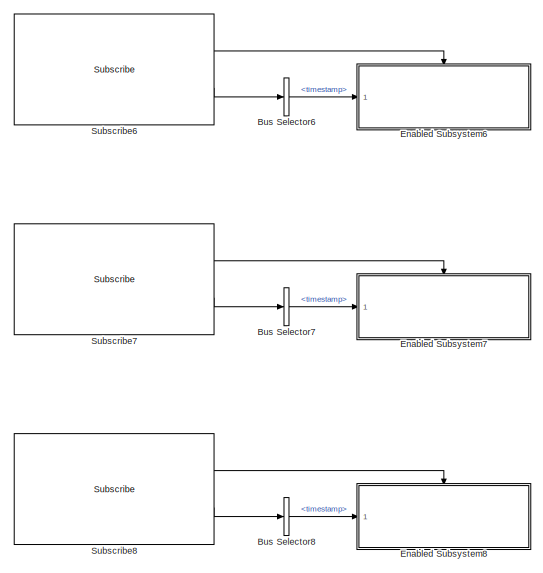
[diagram: root canvas - part 1/2, right side, full height]
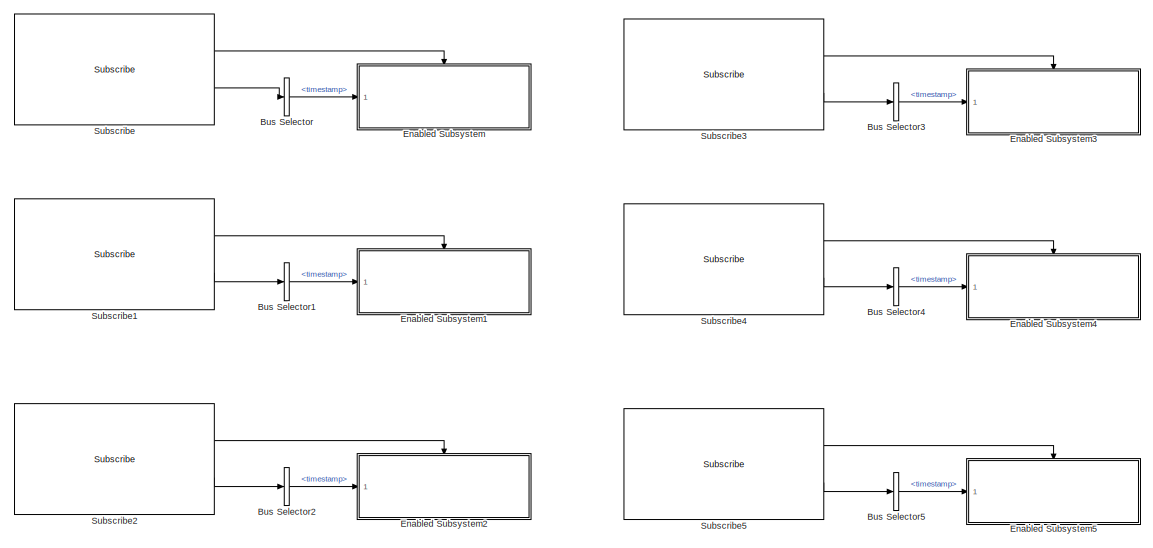
[diagram: root canvas - part 2/2, left side, full height]
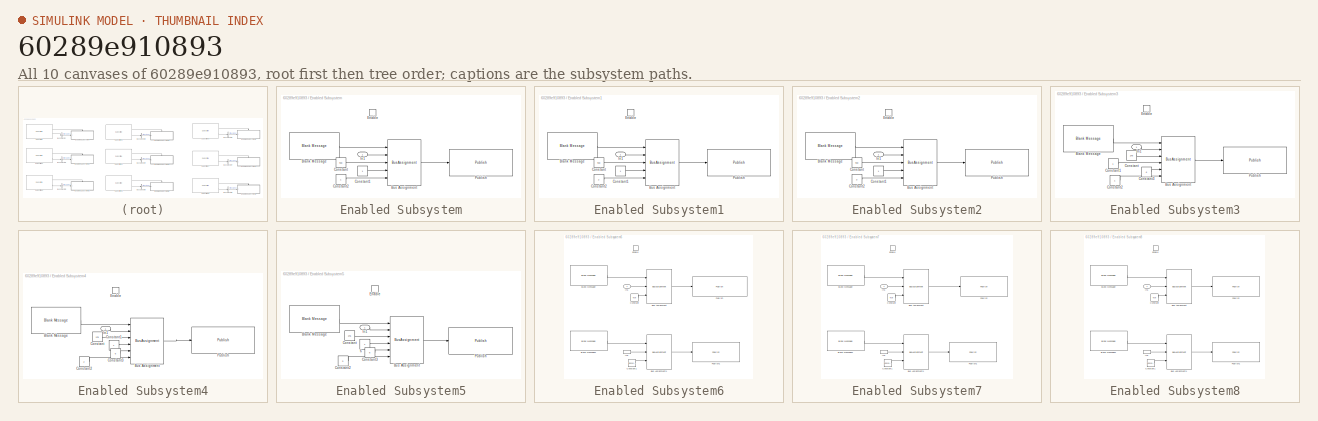
[diagram: thumbnail index - all 10 canvases of the model, root first then tree order]
MODEL slx_60289e910893
KIND model
CONFIG AbsTol = auto
CONFIG EnableMultiTasking = off
CONFIG FixedStep = 0.0001
CONFIG MaxStep = auto
CONFIG MinStep = auto
CONFIG RelTol = 1e-3
CONFIG SampleTimeConstraint = Unconstrained
CONFIG SolverName = FixedStepAuto
CONFIG StartTime = 0.0
CONFIG StopTime = inf
BLOCK [BusSelector] Bus Selector
  OutputSignals = timestamp
  Ports = [1, 1]
BLOCK [BusSelector] Bus Selector1
  OutputSignals = timestamp
  Ports = [1, 1]
BLOCK [BusSelector] Bus Selector2
  OutputSignals = timestamp
  Ports = [1, 1]
BLOCK [BusSelector] Bus Selector3
  OutputSignals = timestamp
  Ports = [1, 1]
BLOCK [BusSelector] Bus Selector4
  OutputSignals = timestamp
  Ports = [1, 1]
BLOCK [BusSelector] Bus Selector5
  OutputSignals = timestamp
  Ports = [1, 1]
BLOCK [BusSelector] Bus Selector6
  OutputSignals = timestamp
  Ports = [1, 1]
BLOCK [BusSelector] Bus Selector7
  OutputSignals = timestamp
  Ports = [1, 1]
BLOCK [BusSelector] Bus Selector8
  OutputSignals = timestamp
  Ports = [1, 1]
BLOCK [SubSystem] Enabled Subsystem
  Ports = [1, 0, 1]
  RequestExecContextInheritance = off
  TreatAsAtomicUnit = on
BLOCK [Reference] Enabled Subsystem/Blank Message  REF=ros2lib/Blank Message  (lib defined in slx_3c1549211f48)
  Ports = [0, 1]
  SourceBlock = ros2lib/Blank Message
  SourceProductBaseCode = RR
  SourceType = ROS2 Blank Message
BLOCK [BusAssignment] Enabled Subsystem/Bus Assignment
  AssignedSignals = timestamp,command,param1,target_system
  Ports = [5, 1]
BLOCK [Constant] Enabled Subsystem/Constant
  OutDataTypeStr = uint32
  Value = 400
BLOCK [Constant] Enabled Subsystem/Constant1
  OutDataTypeStr = single
BLOCK [Constant] Enabled Subsystem/Constant2
  OutDataTypeStr = uint8
BLOCK [EnablePort] Enabled Subsystem/Enable
  Ports = []
BLOCK [Inport] Enabled Subsystem/In1
BLOCK [Reference] Enabled Subsystem/Publish  REF=ros2lib/Publish  (lib defined in slx_3c1549211f48)
  Ports = [1]
  SourceBlock = ros2lib/Publish
  SourceProductBaseCode = RR
  SourceType = ROS2 Publish
BLOCK [SubSystem] Enabled Subsystem1
  Ports = [1, 0, 1]
  RequestExecContextInheritance = off
  TreatAsAtomicUnit = on
BLOCK [Reference] Enabled Subsystem1/Blank Message  REF=ros2lib/Blank Message  (lib defined in slx_3c1549211f48)
  Ports = [0, 1]
  SourceBlock = ros2lib/Blank Message
  SourceProductBaseCode = RR
  SourceType = ROS2 Blank Message
BLOCK [BusAssignment] Enabled Subsystem1/Bus Assignment
  AssignedSignals = timestamp,command,param1,target_system
  Ports = [5, 1]
BLOCK [Constant] Enabled Subsystem1/Constant
  OutDataTypeStr = uint32
  Value = 400
BLOCK [Constant] Enabled Subsystem1/Constant1
  OutDataTypeStr = single
BLOCK [Constant] Enabled Subsystem1/Constant2
  OutDataTypeStr = uint8
  Value = 2
BLOCK [EnablePort] Enabled Subsystem1/Enable
  Ports = []
BLOCK [Inport] Enabled Subsystem1/In1
BLOCK [Reference] Enabled Subsystem1/Publish  REF=ros2lib/Publish  (lib defined in slx_3c1549211f48)
  Ports = [1]
  SourceBlock = ros2lib/Publish
  SourceProductBaseCode = RR
  SourceType = ROS2 Publish
BLOCK [SubSystem] Enabled Subsystem2
  Ports = [1, 0, 1]
  RequestExecContextInheritance = off
  TreatAsAtomicUnit = on
BLOCK [Reference] Enabled Subsystem2/Blank Message  REF=ros2lib/Blank Message  (lib defined in slx_3c1549211f48)
  Ports = [0, 1]
  SourceBlock = ros2lib/Blank Message
  SourceProductBaseCode = RR
  SourceType = ROS2 Blank Message
BLOCK [BusAssignment] Enabled Subsystem2/Bus Assignment
  AssignedSignals = timestamp,command,param1,target_system
  Ports = [5, 1]
BLOCK [Constant] Enabled Subsystem2/Constant
  OutDataTypeStr = uint32
  Value = 400
BLOCK [Constant] Enabled Subsystem2/Constant1
  OutDataTypeStr = single
BLOCK [Constant] Enabled Subsystem2/Constant2
  OutDataTypeStr = uint8
  Value = 3
BLOCK [EnablePort] Enabled Subsystem2/Enable
  Ports = []
BLOCK [Inport] Enabled Subsystem2/In1
BLOCK [Reference] Enabled Subsystem2/Publish  REF=ros2lib/Publish  (lib defined in slx_3c1549211f48)
  Ports = [1]
  SourceBlock = ros2lib/Publish
  SourceProductBaseCode = RR
  SourceType = ROS2 Publish
BLOCK [SubSystem] Enabled Subsystem3
  Ports = [1, 0, 1]
  RequestExecContextInheritance = off
  TreatAsAtomicUnit = on
BLOCK [Reference] Enabled Subsystem3/Blank Message  REF=ros2lib/Blank Message  (lib defined in slx_3c1549211f48)
  Ports = [0, 1]
  SourceBlock = ros2lib/Blank Message
  SourceProductBaseCode = RR
  SourceType = ROS2 Blank Message
BLOCK [BusAssignment] Enabled Subsystem3/Bus Assignment
  AssignedSignals = timestamp,command,param1,param2,target_system
  Ports = [6, 1]
BLOCK [Constant] Enabled Subsystem3/Constant
  OutDataTypeStr = uint32
  Value = 176
BLOCK [Constant] Enabled Subsystem3/Constant1
  OutDataTypeStr = single
BLOCK [Constant] Enabled Subsystem3/Constant2
  OutDataTypeStr = uint8
BLOCK [Constant] Enabled Subsystem3/Constant3
  OutDataTypeStr = single
  Value = 6
BLOCK [EnablePort] Enabled Subsystem3/Enable
  Ports = []
BLOCK [Inport] Enabled Subsystem3/In1
BLOCK [Reference] Enabled Subsystem3/Publish  REF=ros2lib/Publish  (lib defined in slx_3c1549211f48)
  Ports = [1]
  SourceBlock = ros2lib/Publish
  SourceProductBaseCode = RR
  SourceType = ROS2 Publish
BLOCK [SubSystem] Enabled Subsystem4
  Ports = [1, 0, 1]
  RequestExecContextInheritance = off
  TreatAsAtomicUnit = on
BLOCK [Reference] Enabled Subsystem4/Blank Message  REF=ros2lib/Blank Message  (lib defined in slx_3c1549211f48)
  Ports = [0, 1]
  SourceBlock = ros2lib/Blank Message
  SourceProductBaseCode = RR
  SourceType = ROS2 Blank Message
BLOCK [BusAssignment] Enabled Subsystem4/Bus Assignment
  AssignedSignals = timestamp,command,param1,param2,target_system
  Ports = [6, 1]
BLOCK [Constant] Enabled Subsystem4/Constant
  OutDataTypeStr = uint32
  Value = 176
BLOCK [Constant] Enabled Subsystem4/Constant1
  OutDataTypeStr = single
BLOCK [Constant] Enabled Subsystem4/Constant2
  OutDataTypeStr = uint8
  Value = 2
BLOCK [Constant] Enabled Subsystem4/Constant3
  OutDataTypeStr = single
  Value = 6
BLOCK [EnablePort] Enabled Subsystem4/Enable
  Ports = []
BLOCK [Inport] Enabled Subsystem4/In1
BLOCK [Reference] Enabled Subsystem4/Publish  REF=ros2lib/Publish  (lib defined in slx_3c1549211f48)
  Ports = [1]
  SourceBlock = ros2lib/Publish
  SourceProductBaseCode = RR
  SourceType = ROS2 Publish
BLOCK [SubSystem] Enabled Subsystem5
  Ports = [1, 0, 1]
  RequestExecContextInheritance = off
  TreatAsAtomicUnit = on
BLOCK [Constant] Enabled Subsystem5/6
  OutDataTypeStr = single
BLOCK [Reference] Enabled Subsystem5/Blank Message  REF=ros2lib/Blank Message  (lib defined in slx_3c1549211f48)
  Ports = [0, 1]
  SourceBlock = ros2lib/Blank Message
  SourceProductBaseCode = RR
  SourceType = ROS2 Blank Message
BLOCK [BusAssignment] Enabled Subsystem5/Bus Assignment
  AssignedSignals = timestamp,command,param1,param2,target_system
  Ports = [6, 1]
BLOCK [Constant] Enabled Subsystem5/Constant
  OutDataTypeStr = uint32
  Value = 176
BLOCK [Constant] Enabled Subsystem5/Constant2
  OutDataTypeStr = uint8
  Value = 3
BLOCK [Constant] Enabled Subsystem5/Constant3
  OutDataTypeStr = single
  Value = 6
BLOCK [EnablePort] Enabled Subsystem5/Enable
  Ports = []
BLOCK [Inport] Enabled Subsystem5/In1
BLOCK [Reference] Enabled Subsystem5/Publish  REF=ros2lib/Publish  (lib defined in slx_3c1549211f48)
  Ports = [1]
  SourceBlock = ros2lib/Publish
  SourceProductBaseCode = RR
  SourceType = ROS2 Publish
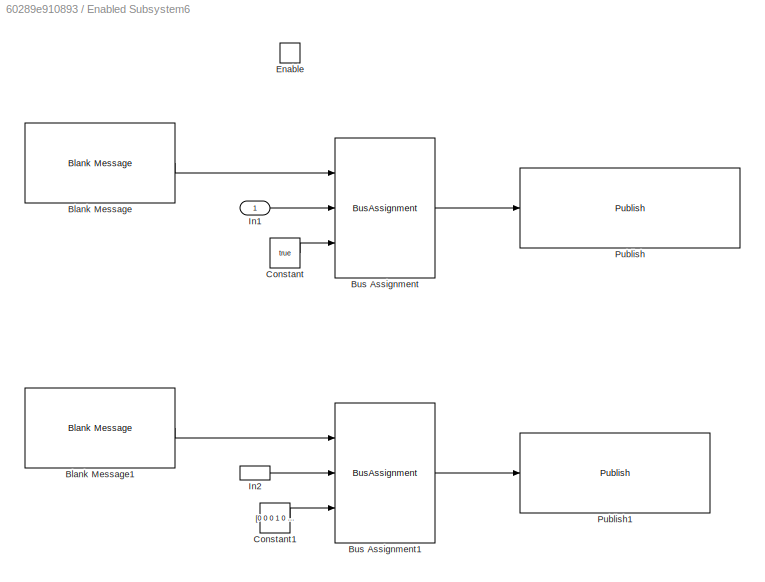
BLOCK [SubSystem] Enabled Subsystem6
  Ports = [1, 0, 1]
  RequestExecContextInheritance = off
  TreatAsAtomicUnit = on
BLOCK [Reference] Enabled Subsystem6/Blank Message  REF=ros2lib/Blank Message  (lib defined in slx_3c1549211f48)
  Ports = [0, 1]
  SourceBlock = ros2lib/Blank Message
  SourceProductBaseCode = RR
  SourceType = ROS2 Blank Message
BLOCK [Reference] Enabled Subsystem6/Blank Message1  REF=ros2lib/Blank Message  (lib defined in slx_3c1549211f48)
  Ports = [0, 1]
  SourceBlock = ros2lib/Blank Message
  SourceProductBaseCode = RR
  SourceType = ROS2 Blank Message
BLOCK [BusAssignment] Enabled Subsystem6/Bus Assignment
  AssignedSignals = timestamp,actuator
  Ports = [3, 1]
BLOCK [BusAssignment] Enabled Subsystem6/Bus Assignment1
  AssignedSignals = timestamp,control
  Ports = [3, 1]
BLOCK [Constant] Enabled Subsystem6/Constant
  OutDataTypeStr = boolean
  Value = true
BLOCK [Constant] Enabled Subsystem6/Constant1
  OutDataTypeStr = single
  Value = [0 0 0 1 0 0 0 0]'
BLOCK [EnablePort] Enabled Subsystem6/Enable
  Ports = []
BLOCK [Inport] Enabled Subsystem6/In1
BLOCK [InportShadow] Enabled Subsystem6/In2
BLOCK [Reference] Enabled Subsystem6/Publish  REF=ros2lib/Publish  (lib defined in slx_3c1549211f48)
  Ports = [1]
  SourceBlock = ros2lib/Publish
  SourceProductBaseCode = RR
  SourceType = ROS2 Publish
BLOCK [Reference] Enabled Subsystem6/Publish1  REF=ros2lib/Publish  (lib defined in slx_3c1549211f48)
  Ports = [1]
  SourceBlock = ros2lib/Publish
  SourceProductBaseCode = RR
  SourceType = ROS2 Publish
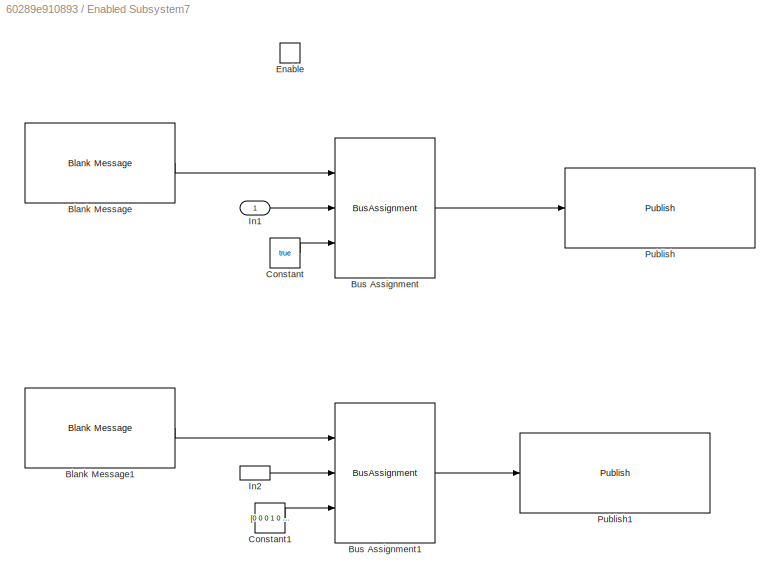
BLOCK [SubSystem] Enabled Subsystem7
  Ports = [1, 0, 1]
  RequestExecContextInheritance = off
  TreatAsAtomicUnit = on
BLOCK [Reference] Enabled Subsystem7/Blank Message  REF=ros2lib/Blank Message  (lib defined in slx_3c1549211f48)
  Ports = [0, 1]
  SourceBlock = ros2lib/Blank Message
  SourceProductBaseCode = RR
  SourceType = ROS2 Blank Message
BLOCK [Reference] Enabled Subsystem7/Blank Message1  REF=ros2lib/Blank Message  (lib defined in slx_3c1549211f48)
  Ports = [0, 1]
  SourceBlock = ros2lib/Blank Message
  SourceProductBaseCode = RR
  SourceType = ROS2 Blank Message
BLOCK [BusAssignment] Enabled Subsystem7/Bus Assignment
  AssignedSignals = timestamp,actuator
  Ports = [3, 1]
BLOCK [BusAssignment] Enabled Subsystem7/Bus Assignment1
  AssignedSignals = timestamp,control
  Ports = [3, 1]
BLOCK [Constant] Enabled Subsystem7/Constant
  OutDataTypeStr = boolean
  Value = true
BLOCK [Constant] Enabled Subsystem7/Constant1
  OutDataTypeStr = single
  Value = [0 0 0 1 0 0 0 0]'
BLOCK [EnablePort] Enabled Subsystem7/Enable
  Ports = []
BLOCK [Inport] Enabled Subsystem7/In1
BLOCK [InportShadow] Enabled Subsystem7/In2
BLOCK [Reference] Enabled Subsystem7/Publish  REF=ros2lib/Publish  (lib defined in slx_3c1549211f48)
  Ports = [1]
  SourceBlock = ros2lib/Publish
  SourceProductBaseCode = RR
  SourceType = ROS2 Publish
BLOCK [Reference] Enabled Subsystem7/Publish1  REF=ros2lib/Publish  (lib defined in slx_3c1549211f48)
  Ports = [1]
  SourceBlock = ros2lib/Publish
  SourceProductBaseCode = RR
  SourceType = ROS2 Publish
BLOCK [SubSystem] Enabled Subsystem8
  Ports = [1, 0, 1]
  RequestExecContextInheritance = off
  TreatAsAtomicUnit = on
BLOCK [Reference] Enabled Subsystem8/Blank Message  REF=ros2lib/Blank Message  (lib defined in slx_3c1549211f48)
  Ports = [0, 1]
  SourceBlock = ros2lib/Blank Message
  SourceProductBaseCode = RR
  SourceType = ROS2 Blank Message
BLOCK [Reference] Enabled Subsystem8/Blank Message1  REF=ros2lib/Blank Message  (lib defined in slx_3c1549211f48)
  Ports = [0, 1]
  SourceBlock = ros2lib/Blank Message
  SourceProductBaseCode = RR
  SourceType = ROS2 Blank Message
BLOCK [BusAssignment] Enabled Subsystem8/Bus Assignment
  AssignedSignals = timestamp,actuator
  Ports = [3, 1]
BLOCK [BusAssignment] Enabled Subsystem8/Bus Assignment1
  AssignedSignals = timestamp,control
  Ports = [3, 1]
BLOCK [Constant] Enabled Subsystem8/Constant
  OutDataTypeStr = boolean
  Value = true
BLOCK [Constant] Enabled Subsystem8/Constant1
  OutDataTypeStr = single
  Value = [0 0 0 1 0 0 0 0]'
BLOCK [EnablePort] Enabled Subsystem8/Enable
  Ports = []
BLOCK [Inport] Enabled Subsystem8/In1
BLOCK [InportShadow] Enabled Subsystem8/In2
BLOCK [Reference] Enabled Subsystem8/Publish  REF=ros2lib/Publish  (lib defined in slx_3c1549211f48)
  Ports = [1]
  SourceBlock = ros2lib/Publish
  SourceProductBaseCode = RR
  SourceType = ROS2 Publish
BLOCK [Reference] Enabled Subsystem8/Publish1  REF=ros2lib/Publish  (lib defined in slx_3c1549211f48)
  Ports = [1]
  SourceBlock = ros2lib/Publish
  SourceProductBaseCode = RR
  SourceType = ROS2 Publish
BLOCK [Reference] Subscribe  REF=ros2lib/Subscribe  (lib defined in slx_3c1549211f48)
  Ports = [0, 2]
  SourceBlock = ros2lib/Subscribe
  SourceProductBaseCode = RR
  SourceType = ROS2 Subscribe
BLOCK [Reference] Subscribe1  REF=ros2lib/Subscribe  (lib defined in slx_3c1549211f48)
  Ports = [0, 2]
  SourceBlock = ros2lib/Subscribe
  SourceProductBaseCode = RR
  SourceType = ROS2 Subscribe
BLOCK [Reference] Subscribe2  REF=ros2lib/Subscribe  (lib defined in slx_3c1549211f48)
  Ports = [0, 2]
  SourceBlock = ros2lib/Subscribe
  SourceProductBaseCode = RR
  SourceType = ROS2 Subscribe
BLOCK [Reference] Subscribe3  REF=ros2lib/Subscribe  (lib defined in slx_3c1549211f48)
  Ports = [0, 2]
  SourceBlock = ros2lib/Subscribe
  SourceProductBaseCode = RR
  SourceType = ROS2 Subscribe
BLOCK [Reference] Subscribe4  REF=ros2lib/Subscribe  (lib defined in slx_3c1549211f48)
  Ports = [0, 2]
  SourceBlock = ros2lib/Subscribe
  SourceProductBaseCode = RR
  SourceType = ROS2 Subscribe
BLOCK [Reference] Subscribe5  REF=ros2lib/Subscribe  (lib defined in slx_3c1549211f48)
  Ports = [0, 2]
  SourceBlock = ros2lib/Subscribe
  SourceProductBaseCode = RR
  SourceType = ROS2 Subscribe
BLOCK [Reference] Subscribe6  REF=ros2lib/Subscribe  (lib defined in slx_3c1549211f48)
  Ports = [0, 2]
  SourceBlock = ros2lib/Subscribe
  SourceProductBaseCode = RR
  SourceType = ROS2 Subscribe
BLOCK [Reference] Subscribe7  REF=ros2lib/Subscribe  (lib defined in slx_3c1549211f48)
  Ports = [0, 2]
  SourceBlock = ros2lib/Subscribe
  SourceProductBaseCode = RR
  SourceType = ROS2 Subscribe
BLOCK [Reference] Subscribe8  REF=ros2lib/Subscribe  (lib defined in slx_3c1549211f48)
  Ports = [0, 2]
  SourceBlock = ros2lib/Subscribe
  SourceProductBaseCode = RR
  SourceType = ROS2 Subscribe
LINE Bus Selector1:1 -> Enabled Subsystem1:1
LINE Bus Selector2:1 -> Enabled Subsystem2:1
LINE Bus Selector3:1 -> Enabled Subsystem3:1
LINE Bus Selector4:1 -> Enabled Subsystem4:1
LINE Bus Selector5:1 -> Enabled Subsystem5:1
LINE Bus Selector6:1 -> Enabled Subsystem6:1
LINE Bus Selector7:1 -> Enabled Subsystem7:1
LINE Bus Selector8:1 -> Enabled Subsystem8:1
LINE Bus Selector:1 -> Enabled Subsystem:1
LINE Enabled Subsystem/Blank Message:1 -> Enabled Subsystem/Bus Assignment:1
LINE Enabled Subsystem/Bus Assignment:1 -> Enabled Subsystem/Publish:1
LINE Enabled Subsystem/Constant1:1 -> Enabled Subsystem/Bus Assignment:4
LINE Enabled Subsystem/Constant2:1 -> Enabled Subsystem/Bus Assignment:5
LINE Enabled Subsystem/Constant:1 -> Enabled Subsystem/Bus Assignment:3
LINE Enabled Subsystem/In1:1 -> Enabled Subsystem/Bus Assignment:2
LINE Enabled Subsystem1/Blank Message:1 -> Enabled Subsystem1/Bus Assignment:1
LINE Enabled Subsystem1/Bus Assignment:1 -> Enabled Subsystem1/Publish:1
LINE Enabled Subsystem1/Constant1:1 -> Enabled Subsystem1/Bus Assignment:4
LINE Enabled Subsystem1/Constant2:1 -> Enabled Subsystem1/Bus Assignment:5
LINE Enabled Subsystem1/Constant:1 -> Enabled Subsystem1/Bus Assignment:3
LINE Enabled Subsystem1/In1:1 -> Enabled Subsystem1/Bus Assignment:2
LINE Enabled Subsystem2/Blank Message:1 -> Enabled Subsystem2/Bus Assignment:1
LINE Enabled Subsystem2/Bus Assignment:1 -> Enabled Subsystem2/Publish:1
LINE Enabled Subsystem2/Constant1:1 -> Enabled Subsystem2/Bus Assignment:4
LINE Enabled Subsystem2/Constant2:1 -> Enabled Subsystem2/Bus Assignment:5
LINE Enabled Subsystem2/Constant:1 -> Enabled Subsystem2/Bus Assignment:3
LINE Enabled Subsystem2/In1:1 -> Enabled Subsystem2/Bus Assignment:2
LINE Enabled Subsystem3/Blank Message:1 -> Enabled Subsystem3/Bus Assignment:1
LINE Enabled Subsystem3/Bus Assignment:1 -> Enabled Subsystem3/Publish:1
LINE Enabled Subsystem3/Constant1:1 -> Enabled Subsystem3/Bus Assignment:4
LINE Enabled Subsystem3/Constant2:1 -> Enabled Subsystem3/Bus Assignment:6
LINE Enabled Subsystem3/Constant3:1 -> Enabled Subsystem3/Bus Assignment:5
LINE Enabled Subsystem3/Constant:1 -> Enabled Subsystem3/Bus Assignment:3
LINE Enabled Subsystem3/In1:1 -> Enabled Subsystem3/Bus Assignment:2
LINE Enabled Subsystem4/Blank Message:1 -> Enabled Subsystem4/Bus Assignment:1
LINE Enabled Subsystem4/Bus Assignment:1 -> Enabled Subsystem4/Publish:1
LINE Enabled Subsystem4/Constant1:1 -> Enabled Subsystem4/Bus Assignment:4
LINE Enabled Subsystem4/Constant2:1 -> Enabled Subsystem4/Bus Assignment:6
LINE Enabled Subsystem4/Constant3:1 -> Enabled Subsystem4/Bus Assignment:5
LINE Enabled Subsystem4/Constant:1 -> Enabled Subsystem4/Bus Assignment:3
LINE Enabled Subsystem4/In1:1 -> Enabled Subsystem4/Bus Assignment:2
LINE Enabled Subsystem5/6:1 -> Enabled Subsystem5/Bus Assignment:4
LINE Enabled Subsystem5/Blank Message:1 -> Enabled Subsystem5/Bus Assignment:1
LINE Enabled Subsystem5/Bus Assignment:1 -> Enabled Subsystem5/Publish:1
LINE Enabled Subsystem5/Constant2:1 -> Enabled Subsystem5/Bus Assignment:6
LINE Enabled Subsystem5/Constant3:1 -> Enabled Subsystem5/Bus Assignment:5
LINE Enabled Subsystem5/Constant:1 -> Enabled Subsystem5/Bus Assignment:3
LINE Enabled Subsystem5/In1:1 -> Enabled Subsystem5/Bus Assignment:2
LINE Enabled Subsystem6/Blank Message1:1 -> Enabled Subsystem6/Bus Assignment1:1
LINE Enabled Subsystem6/Blank Message:1 -> Enabled Subsystem6/Bus Assignment:1
LINE Enabled Subsystem6/Bus Assignment1:1 -> Enabled Subsystem6/Publish1:1
LINE Enabled Subsystem6/Bus Assignment:1 -> Enabled Subsystem6/Publish:1
LINE Enabled Subsystem6/Constant1:1 -> Enabled Subsystem6/Bus Assignment1:3
LINE Enabled Subsystem6/Constant:1 -> Enabled Subsystem6/Bus Assignment:3
LINE Enabled Subsystem6/In1:1 -> Enabled Subsystem6/Bus Assignment:2
LINE Enabled Subsystem6/In2:1 -> Enabled Subsystem6/Bus Assignment1:2
LINE Enabled Subsystem7/Blank Message1:1 -> Enabled Subsystem7/Bus Assignment1:1
LINE Enabled Subsystem7/Blank Message:1 -> Enabled Subsystem7/Bus Assignment:1
LINE Enabled Subsystem7/Bus Assignment1:1 -> Enabled Subsystem7/Publish1:1
LINE Enabled Subsystem7/Bus Assignment:1 -> Enabled Subsystem7/Publish:1
LINE Enabled Subsystem7/Constant1:1 -> Enabled Subsystem7/Bus Assignment1:3
LINE Enabled Subsystem7/Constant:1 -> Enabled Subsystem7/Bus Assignment:3
LINE Enabled Subsystem7/In1:1 -> Enabled Subsystem7/Bus Assignment:2
LINE Enabled Subsystem7/In2:1 -> Enabled Subsystem7/Bus Assignment1:2
LINE Enabled Subsystem8/Blank Message1:1 -> Enabled Subsystem8/Bus Assignment1:1
LINE Enabled Subsystem8/Blank Message:1 -> Enabled Subsystem8/Bus Assignment:1
LINE Enabled Subsystem8/Bus Assignment1:1 -> Enabled Subsystem8/Publish1:1
LINE Enabled Subsystem8/Bus Assignment:1 -> Enabled Subsystem8/Publish:1
LINE Enabled Subsystem8/Constant1:1 -> Enabled Subsystem8/Bus Assignment1:3
LINE Enabled Subsystem8/Constant:1 -> Enabled Subsystem8/Bus Assignment:3
LINE Enabled Subsystem8/In1:1 -> Enabled Subsystem8/Bus Assignment:2
LINE Enabled Subsystem8/In2:1 -> Enabled Subsystem8/Bus Assignment1:2
LINE Subscribe1:1 -> Enabled Subsystem1:enable
LINE Subscribe1:2 -> Bus Selector1:1
LINE Subscribe2:1 -> Enabled Subsystem2:enable
LINE Subscribe2:2 -> Bus Selector2:1
LINE Subscribe3:1 -> Enabled Subsystem3:enable
LINE Subscribe3:2 -> Bus Selector3:1
LINE Subscribe4:1 -> Enabled Subsystem4:enable
LINE Subscribe4:2 -> Bus Selector4:1
LINE Subscribe5:1 -> Enabled Subsystem5:enable
LINE Subscribe5:2 -> Bus Selector5:1
LINE Subscribe6:1 -> Enabled Subsystem6:enable
LINE Subscribe6:2 -> Bus Selector6:1
LINE Subscribe7:1 -> Enabled Subsystem7:enable
LINE Subscribe7:2 -> Bus Selector7:1
LINE Subscribe8:1 -> Enabled Subsystem8:enable
LINE Subscribe8:2 -> Bus Selector8:1
LINE Subscribe:1 -> Enabled Subsystem:enable
LINE Subscribe:2 -> Bus Selector:1
